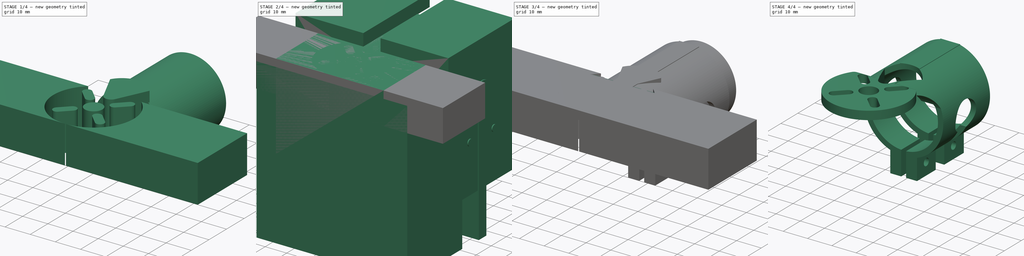
[diagram: build sequence overview — one tinted view per stage of 4, left to right]
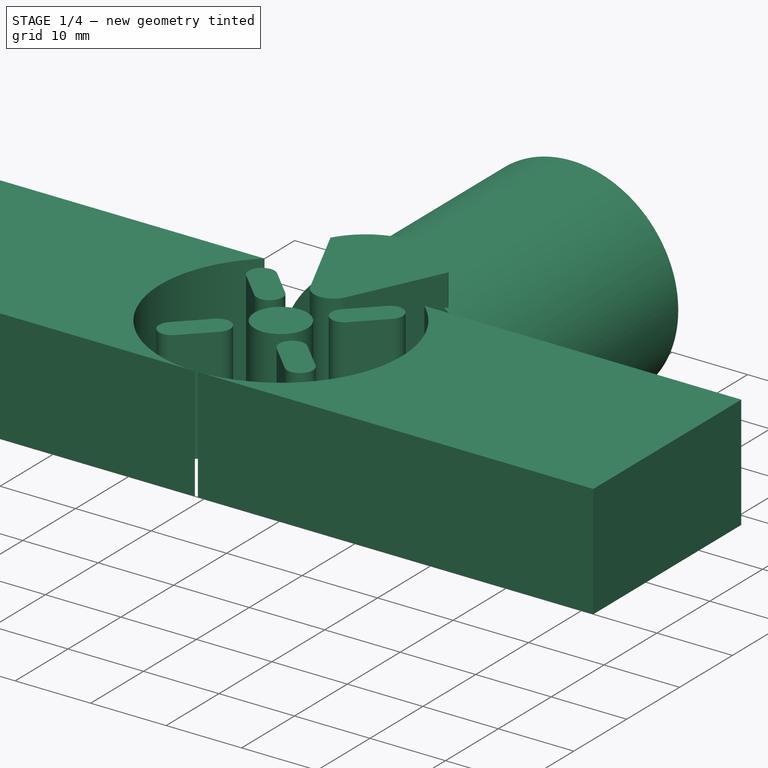
[diagram: stage 1 of 4 — iso view after this stage's code; geometry added in this stage tinted green]
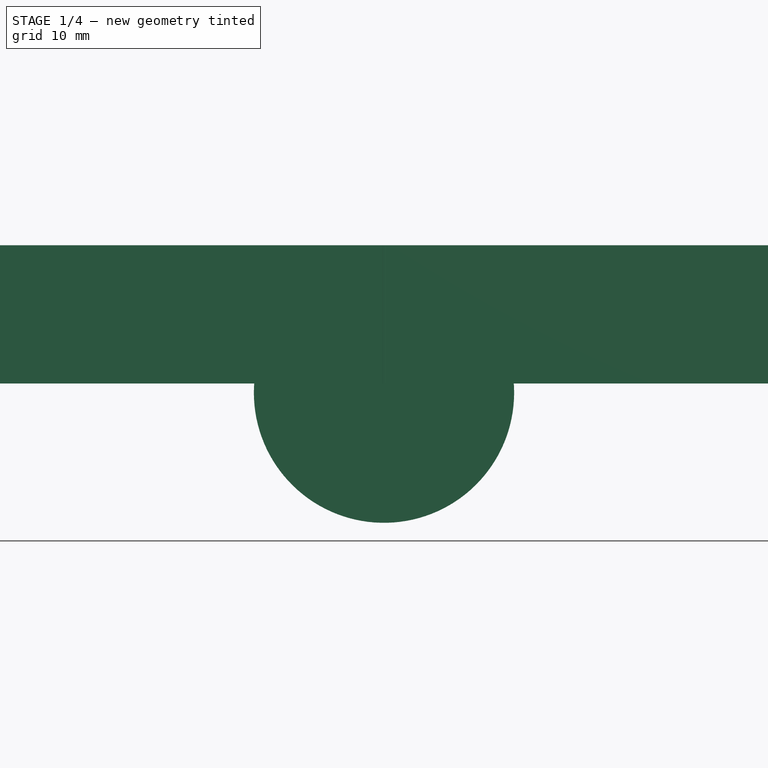
[diagram: stage 1 of 4 — front view after this stage's code; geometry added in this stage tinted green]
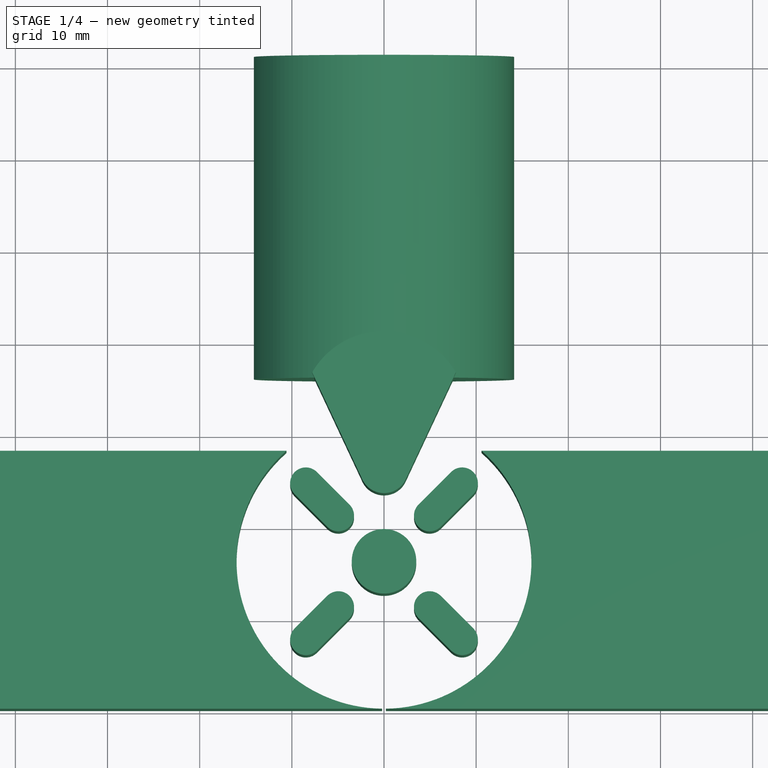
[diagram: stage 1 of 4 — top view after this stage's code; geometry added in this stage tinted green]
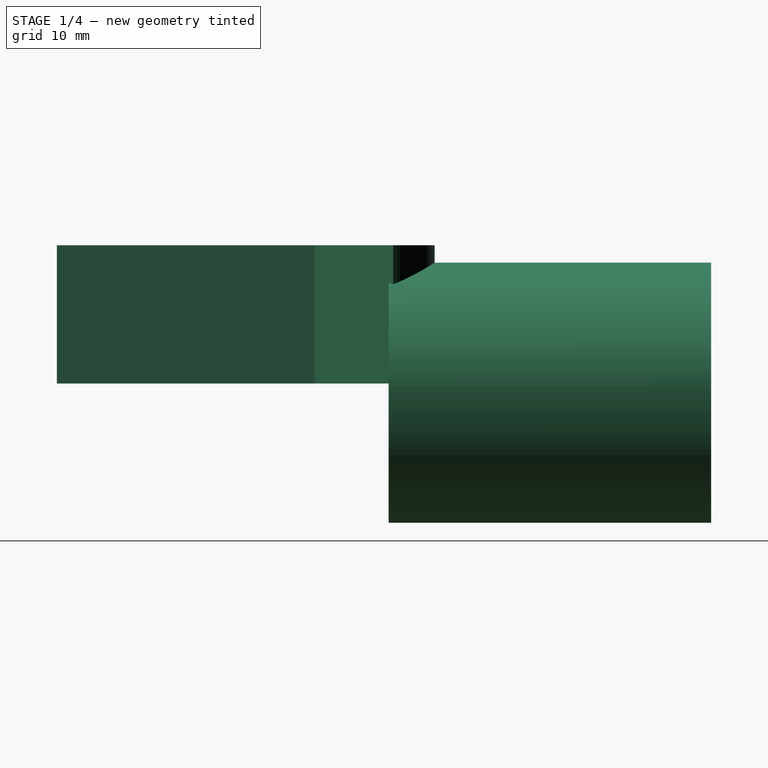
[diagram: stage 1 of 4 — right view after this stage's code; geometry added in this stage tinted green]
FCSTD DOCUMENT  (FreeCAD 0.16R6700 (Git))
Label: motor_mount_cut
License: All rights reserved
LicenseURL: http://en.wikipedia.org/wiki/All_rights_reserved
objects: Sketcher::SketchObject×4, Part::Cut×4, Part::Extrusion×3, Part::Box×1, Part::Fillet×1, Part::Cylinder×1
note: 14 computed .brp shape members not serialized (recipe doc carries the construction recipe); baked Part::Feature solids carry a one-line shape summary decoded from their .brp

FEATURE [Part::Extrusion] Extrude003  label="Motor_Mount_Extrude"
  Base = -> Sketch004
  Dir = (0,0,-15)
  Solid = true
FEATURE [Part::Cylinder] Cylinder
  Angle = 360
  Height = 35
  Placement = pos=(0,71,0) rot=(1,0,0;1.5708rad)
  Radius = 14.12
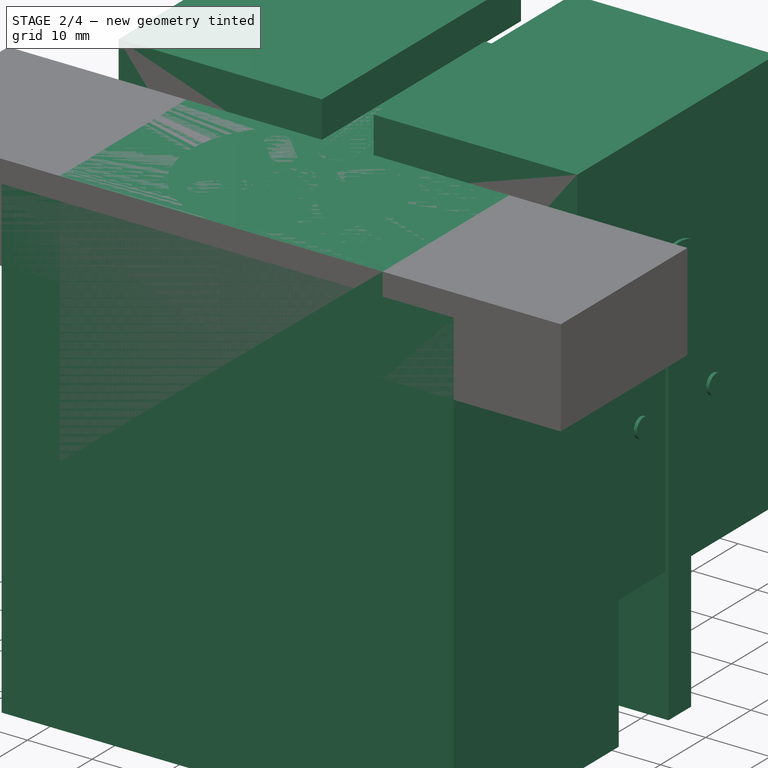
[diagram: stage 2 of 4 — iso view after this stage's code; geometry added in this stage tinted green]
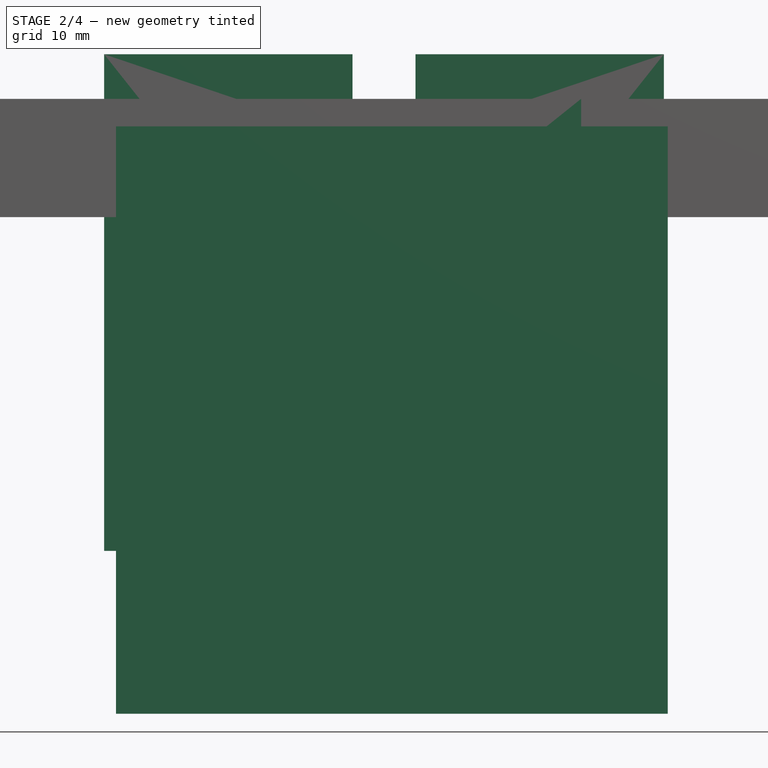
[diagram: stage 2 of 4 — front view after this stage's code; geometry added in this stage tinted green]
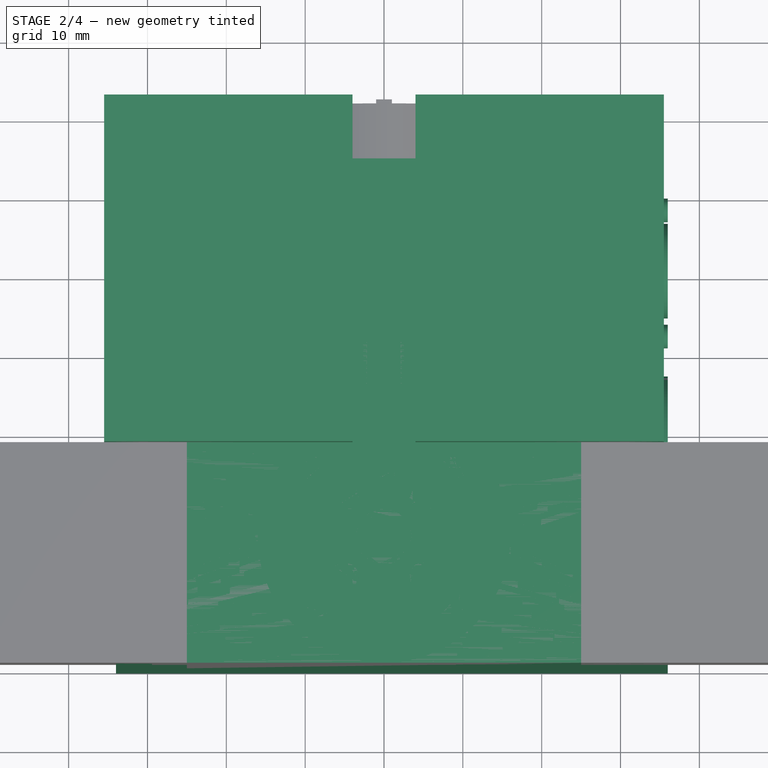
[diagram: stage 2 of 4 — top view after this stage's code; geometry added in this stage tinted green]
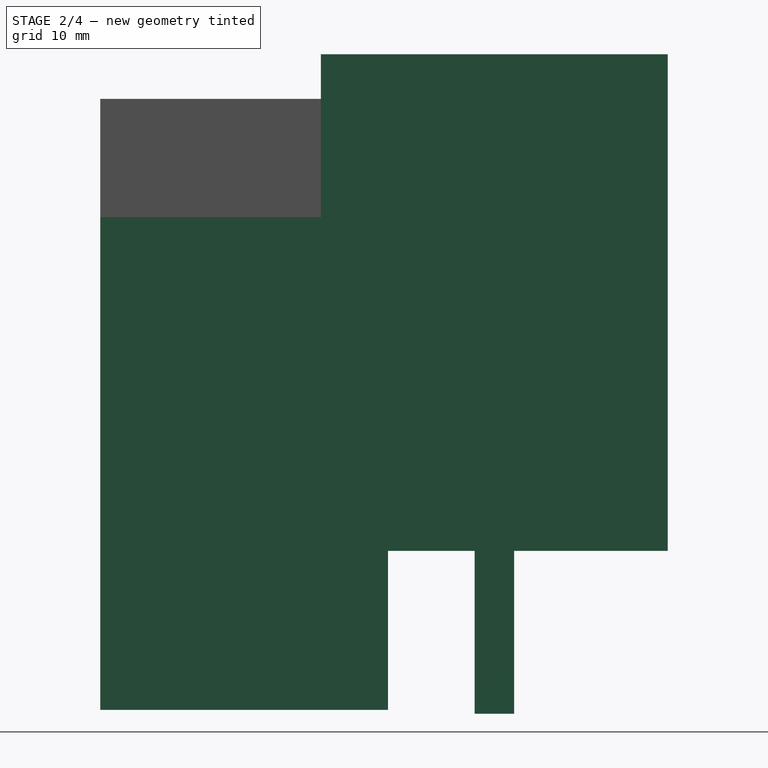
[diagram: stage 2 of 4 — right view after this stage's code; geometry added in this stage tinted green]
FEATURE [Part::Box] Box  label="Cube"
  Height = 40
  Length = 50
  Placement = pos=(-25,0,-24) rot=(0,0,1;0rad)
  Width = 64
FEATURE [Sketcher::SketchObject] Sketch002  label="Pipe_profile_sketch"
  Placement = pos=(0,72,0) rot=(1,0,0;1.5708rad)
  sketch-geometry (16):
    g0: LineSegment StartX=-35.5 StartY=21.6559 StartZ=0 EndX=-35.5 EndY=-41.3441 EndZ=0
    g1: LineSegment StartX=-5.5 StartY=-41.3441 StartZ=0 EndX=-5.5 EndY=-15.3441 EndZ=0
    g2: LineSegment StartX=35.5 StartY=21.6559 StartZ=0 EndX=35.5 EndY=-41.3441 EndZ=0
    g3: LineSegment StartX=35.5 StartY=-41.3441 StartZ=0 EndX=5.5 EndY=-41.3441 EndZ=0
    g4: LineSegment StartX=5.5 StartY=-41.3441 StartZ=0 EndX=5.5 EndY=-15.3441 EndZ=0
    g5: LineSegment StartX=-1 StartY=-40.9642 StartZ=0 EndX=1 EndY=-40.9642 EndZ=0
    g6: LineSegment StartX=1 StartY=-40.9642 StartZ=0 EndX=1 EndY=-13.9642 EndZ=0
    g7: LineSegment StartX=-1 StartY=-13.9642 StartZ=0 EndX=-1 EndY=-40.9642 EndZ=0
    g8: ArcOfCircle CenterX=0 CenterY=0 CenterZ=0 NormalX=0 NormalY=0 NormalZ=1 Radius=16.3 StartAngle=1.81873 EndAngle=4.36821
    g9: ArcOfCircle CenterX=0 CenterY=0 CenterZ=0 NormalX=0 NormalY=0 NormalZ=1 Radius=16.3 StartAngle=5.05657 EndAngle=7.60605
    g10: LineSegment StartX=-35.5 StartY=-41.3441 StartZ=0 EndX=-5.5 EndY=-41.3441 EndZ=0
    g11: LineSegment StartX=4 StartY=15.8016 StartZ=0 EndX=4 EndY=21.6559 EndZ=0
    g12: LineSegment StartX=4 StartY=21.6559 StartZ=0 EndX=35.5 EndY=21.6559 EndZ=0
    g13: LineSegment StartX=-4 StartY=15.8016 StartZ=0 EndX=-4 EndY=21.6559 EndZ=0
    g14: LineSegment StartX=-35.5 StartY=21.6559 StartZ=0 EndX=-4 EndY=21.6559 EndZ=0
    g15: LineSegment StartX=-1 StartY=-13.9642 StartZ=0 EndX=1 EndY=-13.9642 EndZ=0
  constraints (44):
    c: Vertical(g0)
    c: Vertical(g1)
    c: Symmetric(g4,g1,g-2)
    c: DistanceX(g-2,g4) = 5.5
    c: Vertical(g2)
    c: Coincident(g3,g2)
    c: Horizontal(g3)
    c: Coincident(g4,g3)
    c: Vertical(g4)
    c: Equal(g0,g2)
    c: Horizontal(g5)
    c: Coincident(g6,g5)
    c: Vertical(g6)
    c: Vertical(g7)
    c: Equal(g6,g7)
    c: DistanceX(g5,g5) = 2
    c: Symmetric(g6,g7,g-2)
    c: Coincident(g8,g-1)
    c: Coincident(g8,g1)
    c: Coincident(g9,g-1)
    c: Coincident(g9,g4)
    c: Radius(g8) = 16.3
    c: Symmetric(g8,g9,g-2)
    c: DistanceX(g8,g-1) = 4
    c: Coincident(g10,g1)
    c: Horizontal(g10)
    c: Distance(g10) = 30
    c: Distance(g6) = 27
    c: Coincident(g10,g0)
    c: Symmetric(g0,g2,g-2)
    c: Distance(g4) = 26
    c: Coincident(g11,g9)
    c: Vertical(g11)
    c: Coincident(g12,g11)
    c: Coincident(g12,g2)
    c: Horizontal(g12)
    c: Coincident(g13,g8)
    c: Vertical(g13)
    c: Coincident(g14,g0)
    c: Coincident(g14,g13)
    c: Horizontal(g14)
    c: Distance(g0) = 63
    c: Coincident(g15,g7)
    c: Coincident(g15,g6)
FEATURE [Sketcher::SketchObject] Sketch003  label="Side-cut-sketch"
  Placement = pos=(36,0,-2) rot=(0.57735,0.57735,0.57735;2.0944rad)
  sketch-geometry (13):
    g0: LineSegment StartX=26 StartY=14.5 StartZ=0 EndX=0 EndY=14.5 EndZ=0
    g1: LineSegment StartX=0 StartY=-59.5 StartZ=0 EndX=0 EndY=14.5 EndZ=0
    g2: LineSegment [constr] StartX=42 StartY=-17 StartZ=0 EndX=58 EndY=-17 EndZ=0
    g3: Circle CenterX=42 CenterY=-17 CenterZ=0 NormalX=0 NormalY=0 NormalZ=1 Radius=1.5
    g4: Circle CenterX=58 CenterY=-17 CenterZ=0 NormalX=0 NormalY=0 NormalZ=1 Radius=1.5
    g5: LineSegment StartX=47.5 StartY=-60 StartZ=0 EndX=52.5 EndY=-60 EndZ=0
    g6: LineSegment StartX=47.5 StartY=-60 StartZ=0 EndX=47.5 EndY=-5.45436 EndZ=0
    g7: LineSegment StartX=52.5 StartY=-60 StartZ=0 EndX=52.5 EndY=-5.45436 EndZ=0
    g8: LineSegment [constr] StartX=50 StartY=0 StartZ=0 EndX=50 EndY=-60 EndZ=0
    g9: ArcOfCircle CenterX=50 CenterY=0 CenterZ=0 NormalX=0 NormalY=0 NormalZ=1 Radius=6 StartAngle=5.14216 EndAngle=10.5658
    g10: LineSegment StartX=36.5 StartY=7.50135 StartZ=0 EndX=36.5 EndY=-59.5 EndZ=0
    g11: LineSegment StartX=0 StartY=-59.5 StartZ=0 EndX=36.5 EndY=-59.5 EndZ=0
    g12: ArcOfCircle CenterX=26.2524 CenterY=3.5029 CenterZ=0 NormalX=0 NormalY=0 NormalZ=1 Radius=11 StartAngle=0.372017 EndAngle=1.59375
  constraints (40):
    c: Horizontal(g0)
    c: PointOnObject(g1,g-2)
    c: Coincident(g1,g0)
    c: DistanceY(g-1,g0) = 14.5
    c: Horizontal(g2)
    c: Coincident(g3,g2)
    c: Coincident(g4,g2)
    c: DistanceY(g-1,g2) = -17
    c: Radius(g3) = 1.5
    c: Equal(g3,g4)
    c: Horizontal(g5)
    c: Coincident(g6,g5)
    c: Vertical(g6)
    c: Coincident(g7,g5)
    c: Vertical(g7)
    c: Distance(g5) = 5
    c: PointOnObject(g8,g-1)
    c: Vertical(g8)
    c: Distance(g2,g8) = 8
    c: Symmetric(g7,g6,g8)
    c: PointOnObject(g8,g5)
    c: Distance(g8) = 60
    c: Coincident(g9,g6)
    c: Coincident(g9,g7)
    c: Radius(g9) = 6
    c: Vertical(g10)
    c: Coincident(g11,g1)
    c: Coincident(g11,g10)
    c: Horizontal(g11)
    c: PointOnObject(g0,g-2)
    c: Distance(g1) = 74
    c: Coincident(g12,g0)
    c: Coincident(g12,g10)
    c: Radius(g12) = 11
    c: Angle(g12) = 1.22173
    c: Distance(g0) = 26
    c: Symmetric(g2,g2,g8)
    c: PointOnObject(g9,g-1)
    c: DistanceX(g-2,g8) = 50
    c: Distance(g11) = 36.5
FEATURE [Sketcher::SketchObject] Sketch004  label="motor_mount_sketch"
  Placement = pos=(0,0,16) rot=(0,0,1;0rad)
  sketch-geometry (45):
    g0: LineSegment StartX=-52.5816 StartY=28 StartZ=0 EndX=-52.5816 EndY=0 EndZ=0
    g1: LineSegment StartX=-52.5816 StartY=0 StartZ=0 EndX=-0.2 EndY=0 EndZ=0
    g2: LineSegment StartX=0.2 StartY=0 StartZ=0 EndX=52.5816 EndY=0 EndZ=0
    g3: LineSegment StartX=52.5816 StartY=0 StartZ=0 EndX=52.5816 EndY=28 EndZ=0
    g4: LineSegment StartX=-52.5816 StartY=28 StartZ=0 EndX=-10.5816 EndY=28 EndZ=0
    g5: LineSegment StartX=10.5816 StartY=28 StartZ=0 EndX=52.5816 EndY=28 EndZ=0
    g6: ArcOfCircle CenterX=-3e-12 CenterY=15.9987 CenterZ=0 NormalX=0 NormalY=0 NormalZ=1 Radius=16 StartAngle=2.29341 EndAngle=4.69989
    g7: ArcOfCircle CenterX=-3e-12 CenterY=15.9987 CenterZ=0 NormalX=0 NormalY=0 NormalZ=1 Radius=16 StartAngle=4.72489 EndAngle=7.13137
    g8: Circle CenterX=-3e-12 CenterY=15.9987 CenterZ=0 NormalX=0 NormalY=0 NormalZ=1 Radius=3.5
    g9: LineSegment [constr] StartX=-15.9987 StartY=0 StartZ=0 EndX=12.0013 EndY=28 EndZ=0
    g10: LineSegment [constr] StartX=-12.0013 StartY=28 StartZ=0 EndX=15.9987 EndY=0 EndZ=0
    g11: ArcOfCircle CenterX=-4.94975 CenterY=20.9485 CenterZ=0 NormalX=0 NormalY=0 NormalZ=1 Radius=1.7 StartAngle=3.92699 EndAngle=7.06858
    g12: ArcOfCircle CenterX=-8.48528 CenterY=24.484 CenterZ=0 NormalX=0 NormalY=0 NormalZ=1 Radius=1.7 StartAngle=0.785398 EndAngle=3.92699
    g13: LineSegment StartX=-3.74767 StartY=22.1506 StartZ=0 EndX=-7.2832 EndY=25.6861 EndZ=0
    g14: LineSegment StartX=-6.15183 StartY=19.7464 StartZ=0 EndX=-9.68736 EndY=23.2819 EndZ=0
    g15: ArcOfCircle CenterX=-4.94975 CenterY=11.049 CenterZ=0 NormalX=0 NormalY=0 NormalZ=1 Radius=1.7 StartAngle=5.49779 EndAngle=8.63938
    g16: ArcOfCircle CenterX=-8.48528 CenterY=7.51347 CenterZ=0 NormalX=0 NormalY=0 NormalZ=1 Radius=1.7 StartAngle=2.35619 EndAngle=5.49779
    g17: LineSegment StartX=-6.15183 StartY=12.2511 StartZ=0 EndX=-9.68736 EndY=8.71555 EndZ=0
    g18: LineSegment StartX=-3.74767 StartY=9.84692 StartZ=0 EndX=-7.2832 EndY=6.31139 EndZ=0
    g19: ArcOfCircle CenterX=4.94975 CenterY=11.049 CenterZ=0 NormalX=0 NormalY=0 NormalZ=1 Radius=1.7 StartAngle=0.785398 EndAngle=3.92699
    g20: ArcOfCircle CenterX=8.48528 CenterY=7.51347 CenterZ=0 NormalX=0 NormalY=0 NormalZ=1 Radius=1.7 StartAngle=3.92699 EndAngle=7.06858
    g21: LineSegment StartX=3.74767 StartY=9.84692 StartZ=0 EndX=7.2832 EndY=6.31139 EndZ=0
    g22: LineSegment StartX=6.15183 StartY=12.2511 StartZ=0 EndX=9.68736 EndY=8.71555 EndZ=0
    g23: ArcOfCircle CenterX=4.94975 CenterY=20.9485 CenterZ=0 NormalX=0 NormalY=0 NormalZ=1 Radius=1.7 StartAngle=2.35619 EndAngle=5.49779
    g24: ArcOfCircle CenterX=8.48528 CenterY=24.484 CenterZ=0 NormalX=0 NormalY=0 NormalZ=1 Radius=1.7 StartAngle=5.49779 EndAngle=8.63938
    g25: LineSegment StartX=6.15183 StartY=19.7464 StartZ=0 EndX=9.68736 EndY=23.2819 EndZ=0
    g26: LineSegment StartX=3.74767 StartY=22.1506 StartZ=0 EndX=7.2832 EndY=25.6861 EndZ=0
    g27: Circle [constr] CenterX=-3e-12 CenterY=15.9987 CenterZ=0 NormalX=0 NormalY=0 NormalZ=1 Radius=7
    g28: LineSegment StartX=-2.35412 StartY=24.8951 StartZ=0 EndX=-7.79423 EndY=36.4987 EndZ=0
    g29: LineSegment StartX=2.35412 StartY=24.8951 StartZ=0 EndX=7.79423 EndY=36.4987 EndZ=0
    g30: ArcOfCircle CenterX=0 CenterY=31.9987 CenterZ=0 NormalX=0 NormalY=0 NormalZ=1 Radius=9 StartAngle=0.523599 EndAngle=2.61799
    g31: ArcOfCircle CenterX=0 CenterY=25.9987 CenterZ=0 NormalX=0 NormalY=0 NormalZ=1 Radius=2.6 StartAngle=3.57999 EndAngle=5.84479
    g32: LineSegment [constr] StartX=-16 StartY=15.9987 StartZ=0 EndX=16 EndY=15.9987 EndZ=0
    g33: ArcOfCircle [constr] CenterX=-7 CenterY=15.9987 CenterZ=0 NormalX=0 NormalY=0 NormalZ=1 Radius=1.7 StartAngle=4.71239 EndAngle=7.85398
    g34: ArcOfCircle [constr] CenterX=-12 CenterY=15.9987 CenterZ=0 NormalX=0 NormalY=0 NormalZ=1 Radius=1.7 StartAngle=1.5708 EndAngle=4.71239
    g35: LineSegment [constr] StartX=-7 StartY=17.6987 StartZ=0 EndX=-12 EndY=17.6987 EndZ=0
    g36: LineSegment [constr] StartX=-7 StartY=14.2987 StartZ=0 EndX=-12 EndY=14.2987 EndZ=0
    g37: ArcOfCircle [constr] CenterX=0 CenterY=8.99875 CenterZ=0 NormalX=0 NormalY=0 NormalZ=1 Radius=1.7 StartAngle=0 EndAngle=3.14159
    g38: ArcOfCircle [constr] CenterX=0 CenterY=3.99875 CenterZ=0 NormalX=0 NormalY=0 NormalZ=1 Radius=1.7 StartAngle=3.14159 EndAngle=6.28319
    g39: LineSegment [constr] StartX=-1.7 StartY=8.99875 StartZ=0 EndX=-1.7 EndY=3.99875 EndZ=0
    g40: LineSegment [constr] StartX=1.7 StartY=8.99875 StartZ=0 EndX=1.7 EndY=3.99875 EndZ=0
    g41: ArcOfCircle [constr] CenterX=7 CenterY=15.9987 CenterZ=0 NormalX=0 NormalY=0 NormalZ=1 Radius=1.7 StartAngle=1.5708 EndAngle=4.71239
    g42: ArcOfCircle [constr] CenterX=12 CenterY=15.9987 CenterZ=0 NormalX=0 NormalY=0 NormalZ=1 Radius=1.7 StartAngle=4.71239 EndAngle=7.85398
    g43: LineSegment [constr] StartX=7 StartY=14.2987 StartZ=0 EndX=12 EndY=14.2987 EndZ=0
    g44: LineSegment [constr] StartX=7 StartY=17.6987 StartZ=0 EndX=12 EndY=17.6987 EndZ=0
  constraints (121):
    c: PointOnObject(g0,g-1)
    c: Vertical(g0)
    c: Coincident(g1,g0)
    c: PointOnObject(g1,g-1)
    c: Horizontal(g2)
    c: Coincident(g3,g2)
    c: Vertical(g3)
    c: Symmetric(g2,g1,g-2)
    c: Symmetric(g0,g2,g-2)
    c: DistanceX(g-2,g1) = -0.2
    c: Equal(g0,g3)
    c: Coincident(g4,g0)
    c: Horizontal(g4)
    c: Coincident(g5,g3)
    c: Horizontal(g5)
    c: Symmetric(g5,g4,g-2)
    c: Coincident(g6,g4)
    c: Coincident(g6,g1)
    c: Coincident(g7,g6)
    c: Coincident(g7,g5)
    c: Coincident(g7,g2)
    c: Distance(g4) = 42
    c: Radius(g6) = 16
    c: Distance(g0) = 28
    c: Radius(g8) = 3.5
    c: Coincident(g8,g6)
    c: PointOnObject(g9,g5)
    c: PointOnObject(g10,g4)
    c: PointOnObject(g10,g2)
    c: PointOnObject(g6,g9)
    c: PointOnObject(g6,g10)
    c: Angle(g9,g10) = 1.5708
    c: Equal(g10,g9)
    c: PointOnObject(g9,g1)
    c: Tangent(g11,g14) = 1.5708
    c: Tangent(g11,g13) = -1.5708
    c: Tangent(g13,g12) = -1.5708
    c: Tangent(g14,g12) = 1.5708
    c: Equal(g11,g12)
    c: PointOnObject(g11,g10)
    c: PointOnObject(g12,g10)
    c: Distance(g11,g6) = 7
    c: Radius(g12) = 1.7
    c: Distance(g13) = 5
    c: Tangent(g15,g18) = 1.5708
    c: Tangent(g15,g17) = -1.5708
    c: Tangent(g17,g16) = -1.5708
    c: Tangent(g18,g16) = 1.5708
    c: Equal(g15,g16)
    c: PointOnObject(g15,g9)
    c: PointOnObject(g16,g9)
    c: PointOnObject(g19,g10)
    c: PointOnObject(g23,g9)
    c: Equal(g15,g11)
    c: Equal(g14,g17)
    c: Tangent(g19,g22) = 1.5708
    c: Tangent(g19,g21) = -1.5708
    c: Tangent(g21,g20) = -1.5708
    c: Tangent(g22,g20) = 1.5708
    c: Equal(g19,g20)
    c: PointOnObject(g20,g10)
    c: Equal(g19,g11)
    c: Equal(g21,g14)
    c: Tangent(g23,g26) = 1.5708
    c: Tangent(g23,g25) = -1.5708
    c: Tangent(g25,g24) = -1.5708
    c: Tangent(g26,g24) = 1.5708
    c: Equal(g23,g24)
    c: PointOnObject(g24,g9)
    c: Equal(g23,g11)
    c: Equal(g26,g13)
    c: Coincident(g27,g6)
    c: PointOnObject(g11,g27)
    c: PointOnObject(g15,g27)
    c: PointOnObject(g19,g27)
    c: PointOnObject(g23,g27)
    c: Symmetric(g29,g28,g-2)
    c: Coincident(g30,g28)
    c: Coincident(g30,g29)
    c: Radius(g30) = 9
    c: Angle(g30) = 2.0944
    c: Tangent(g28,g31) = 1.5708
    c: Tangent(g29,g31) = -1.5708
    c: Symmetric(g29,g28,g-2)
    c: Radius(g31) = 2.6
    c: Distance(g30,g6) = 16
    c: Distance(g31,g30) = 6
    c: PointOnObject(g32,g6)
    c: PointOnObject(g32,g7)
    c: Horizontal(g32)
    c: PointOnObject(g6,g32)
    c: Tangent(g33,g36) = 1.5708
    c: Tangent(g33,g35) = -1.5708
    c: Tangent(g35,g34) = -1.5708
    c: Tangent(g36,g34) = 1.5708
    c: Horizontal(g35)
    c: Equal(g33,g34)
    c: PointOnObject(g33,g32)
    c: PointOnObject(g33,g27)
    c: Equal(g33,g11)
    c: Equal(g35,g14)
    c: Tangent(g37,g40) = 1.5708
    c: Tangent(g37,g39) = -1.5708
    c: Tangent(g39,g38) = -1.5708
    c: Tangent(g40,g38) = 1.5708
    c: Vertical(g39)
    c: Equal(g37,g38)
    c: PointOnObject(g37,g-2)
    c: Tangent(g41,g44) = 1.5708
    c: Tangent(g41,g43) = -1.5708
    c: Tangent(g43,g42) = -1.5708
    c: Tangent(g44,g42) = 1.5708
    c: Horizontal(g43)
    c: Equal(g41,g42)
    c: PointOnObject(g41,g32)
    c: PointOnObject(g41,g27)
    c: Equal(g41,g11)
    c: Equal(g44,g14)
    c: PointOnObject(g37,g27)
    c: Equal(g37,g11)
    c: Equal(g39,g14)
FEATURE [Sketcher::SketchObject] Sketch005  label="Pipe_profile_sketch_copy"
  Placement = pos=(0,72,0) rot=(1,0,0;1.5708rad)
  sketch-geometry (16):
    g0: LineSegment StartX=-35.5 StartY=21.975 StartZ=0 EndX=-35.5 EndY=-41.025 EndZ=0
    g1: LineSegment StartX=-5.5 StartY=-41.025 StartZ=0 EndX=-5.5 EndY=-15.025 EndZ=0
    g2: LineSegment StartX=35.5 StartY=21.975 StartZ=0 EndX=35.5 EndY=-41.025 EndZ=0
    g3: LineSegment StartX=35.5 StartY=-41.025 StartZ=0 EndX=5.5 EndY=-41.025 EndZ=0
    g4: LineSegment StartX=5.5 StartY=-41.025 StartZ=0 EndX=5.5 EndY=-15.025 EndZ=0
    g5: LineSegment StartX=-1 StartY=-40.9642 StartZ=0 EndX=1 EndY=-40.9642 EndZ=0
    g6: LineSegment StartX=1 StartY=-40.9642 StartZ=0 EndX=1 EndY=-13.9642 EndZ=0
    g7: LineSegment StartX=-1 StartY=-13.9642 StartZ=0 EndX=-1 EndY=-40.9642 EndZ=0
    g8: ArcOfCircle CenterX=0 CenterY=0 CenterZ=0 NormalX=0 NormalY=0 NormalZ=1 Radius=14 StartAngle=4.78388 EndAngle=10.9241
    g9: ArcOfCircle CenterX=0 CenterY=0 CenterZ=0 NormalX=0 NormalY=0 NormalZ=1 Radius=16 StartAngle=1.57705 EndAngle=4.36148
    g10: ArcOfCircle CenterX=0 CenterY=0 CenterZ=0 NormalX=0 NormalY=0 NormalZ=1 Radius=16 StartAngle=5.0633 EndAngle=7.84773
    g11: LineSegment StartX=-35.5 StartY=-41.025 StartZ=0 EndX=-5.5 EndY=-41.025 EndZ=0
    g12: LineSegment StartX=0.1 StartY=15.9997 StartZ=0 EndX=0.1 EndY=21.975 EndZ=0
    g13: LineSegment StartX=0.1 StartY=21.975 StartZ=0 EndX=35.5 EndY=21.975 EndZ=0
    g14: LineSegment StartX=-0.1 StartY=15.9997 StartZ=0 EndX=-0.1 EndY=21.975 EndZ=0
    g15: LineSegment StartX=-35.5 StartY=21.975 StartZ=0 EndX=-0.1 EndY=21.975 EndZ=0
  constraints (46):
    c: Vertical(g0)
    c: Vertical(g1)
    c: Symmetric(g4,g1,g-2)
    c: DistanceX(g-2,g4) = 5.5
    c: Vertical(g2)
    c: Coincident(g3,g2)
    c: Horizontal(g3)
    c: Coincident(g4,g3)
    c: Vertical(g4)
    c: Equal(g0,g2)
    c: Horizontal(g5)
    c: Coincident(g6,g5)
    c: Vertical(g6)
    c: Vertical(g7)
    c: Equal(g6,g7)
    c: DistanceX(g5,g5) = 2
    c: Symmetric(g6,g7,g-2)
    c: Coincident(g8,g-1)
    c: Coincident(g8,g6)
    c: Radius(g8) = 14
    c: Coincident(g9,g-1)
    c: Coincident(g9,g1)
    c: Coincident(g10,g-1)
    c: Coincident(g10,g4)
    c: Radius(g9) = 16
    c: Symmetric(g9,g10,g-2)
    c: DistanceX(g9,g-1) = 0.1
    c: Coincident(g11,g1)
    c: Horizontal(g11)
    c: Distance(g11) = 30
    c: Distance(g6) = 27
    c: Coincident(g11,g0)
    c: Symmetric(g0,g2,g-2)
    c: Coincident(g7,g8)
    c: Distance(g4) = 26
    c: Coincident(g12,g10)
    c: Vertical(g12)
    c: Coincident(g13,g12)
    c: Coincident(g13,g2)
    c: Horizontal(g13)
    c: Coincident(g14,g9)
    c: Vertical(g14)
    c: Coincident(g15,g0)
    c: Coincident(g15,g14)
    c: Horizontal(g15)
    c: Distance(g0) = 63
FEATURE [Part::Extrusion] Extrude  label="Side_Cut_Extrude"
  Base = -> Sketch003
  Dir = (-70,0,0)
  Solid = true
FEATURE [Part::Extrusion] Extrude001  label="Pipe_profile_extride"
  Base = -> Sketch002
  Dir = (0,-44,0)
  Solid = true
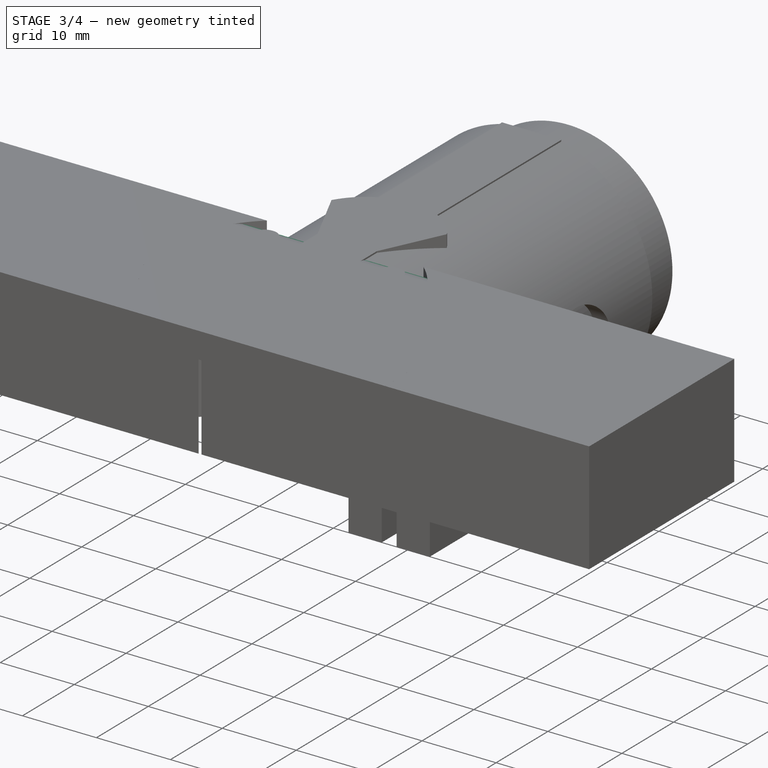
[diagram: stage 3 of 4 — iso view after this stage's code; geometry added in this stage tinted green]
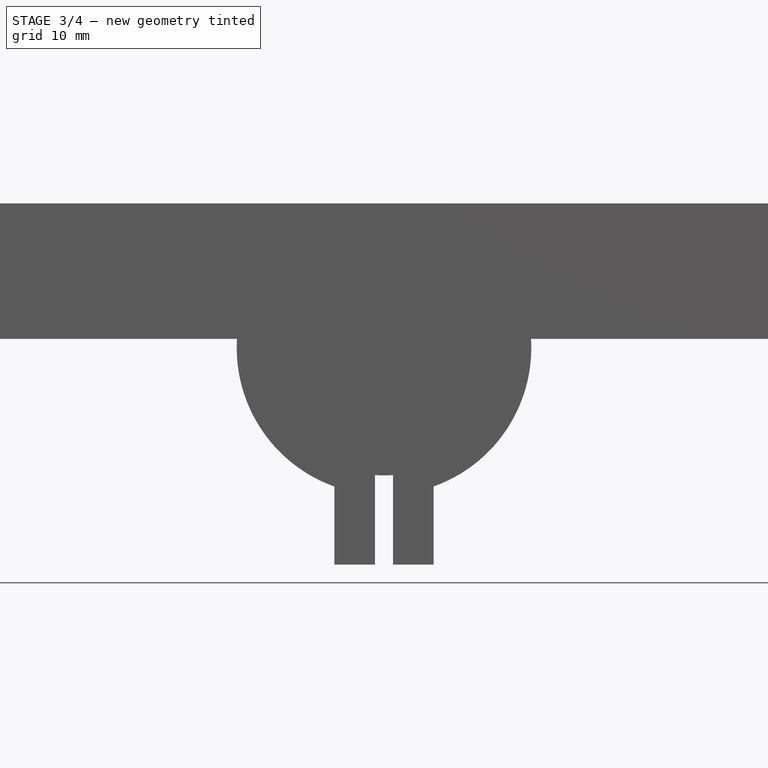
[diagram: stage 3 of 4 — front view after this stage's code; geometry added in this stage tinted green]
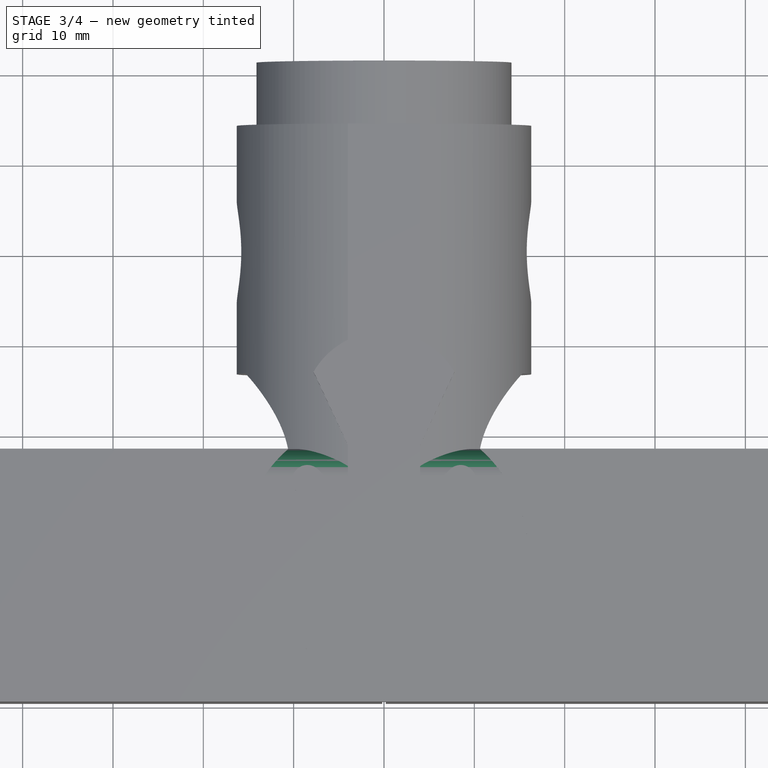
[diagram: stage 3 of 4 — top view after this stage's code; geometry added in this stage tinted green]
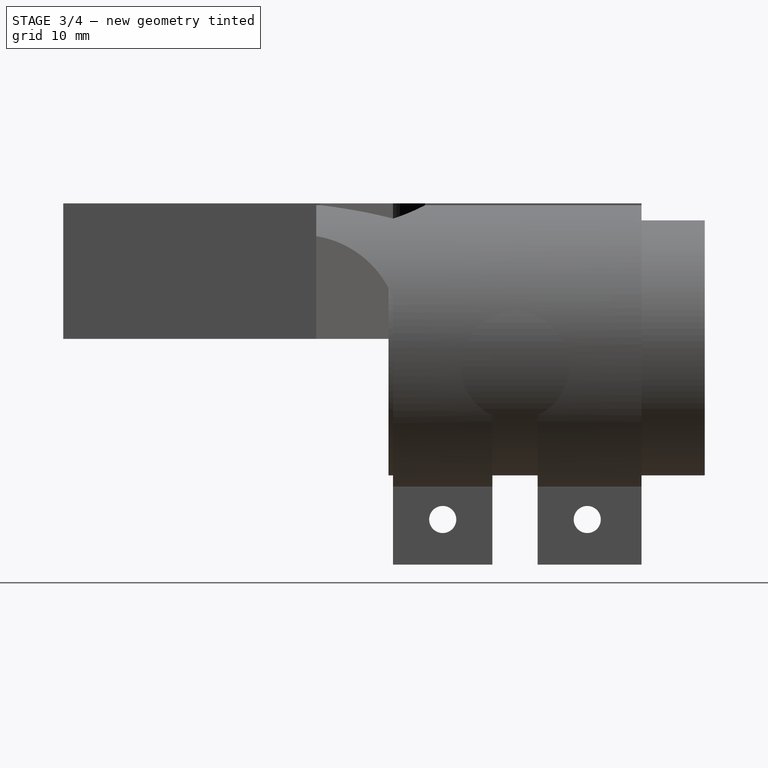
[diagram: stage 3 of 4 — right view after this stage's code; geometry added in this stage tinted green]
FEATURE [Part::Cut] Cut
  Base = -> Box
  Tool = -> Extrude
FEATURE [Part::Cut] Cut001
  Base = -> Cut
  Tool = -> Extrude001
FEATURE [Part::Fillet] Fillet
  Base = -> Cut001
  Edges = 2 edges r=3: [Edge9,Edge13]
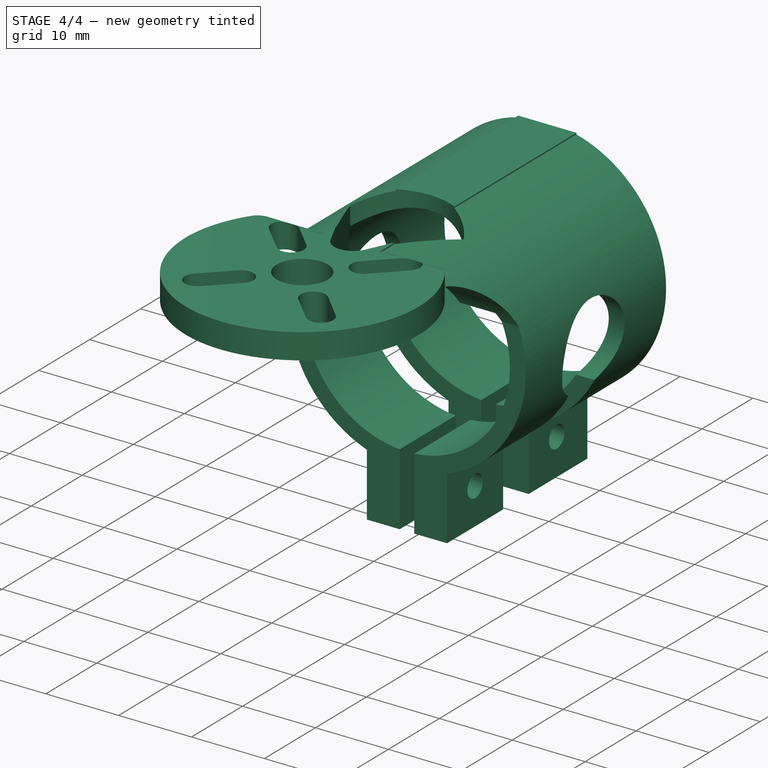
[diagram: stage 4 of 4 — iso view after this stage's code; geometry added in this stage tinted green]
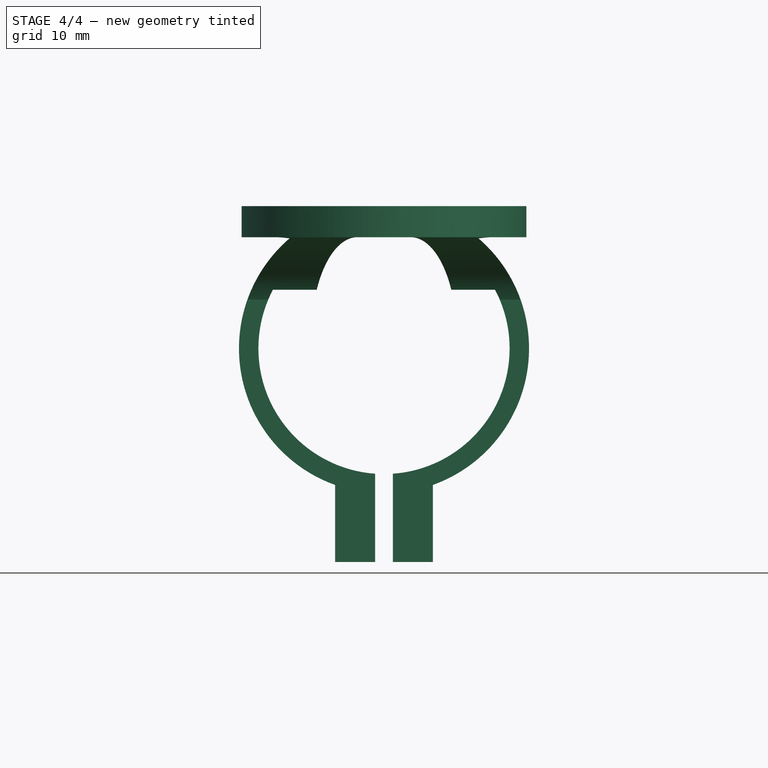
[diagram: stage 4 of 4 — front view after this stage's code; geometry added in this stage tinted green]
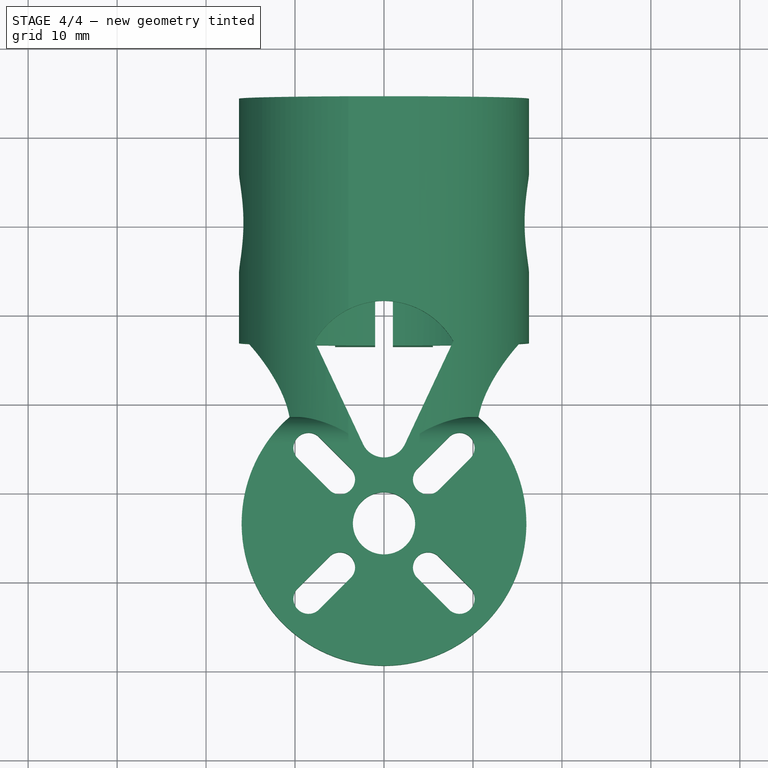
[diagram: stage 4 of 4 — top view after this stage's code; geometry added in this stage tinted green]
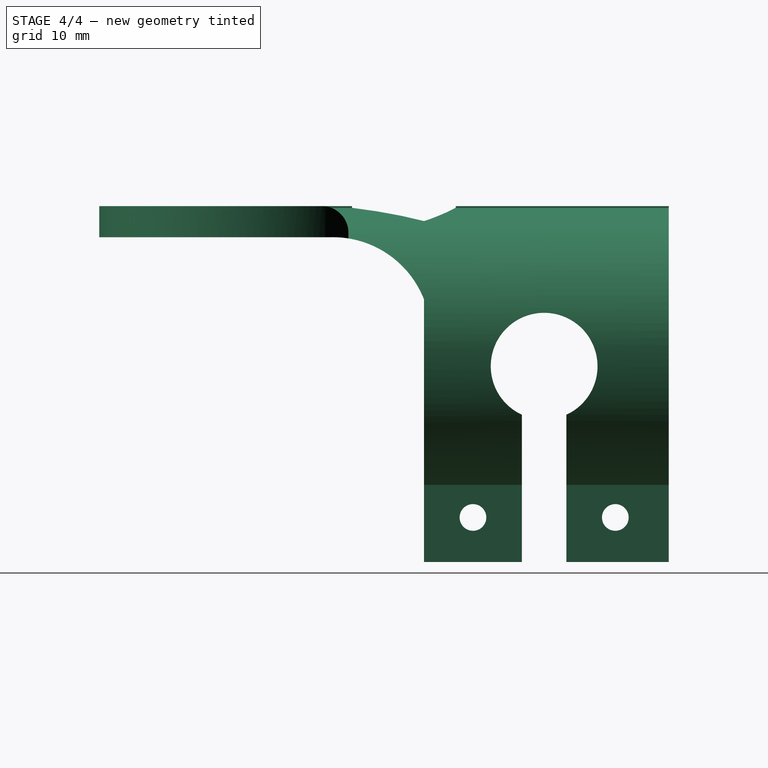
[diagram: stage 4 of 4 — right view after this stage's code; geometry added in this stage tinted green]
FEATURE [Part::Cut] Cut002
  Base = -> Fillet
  Tool = -> Extrude003
FEATURE [Part::Cut] Cut003
  Base = -> Cut002
  Tool = -> Cylinder
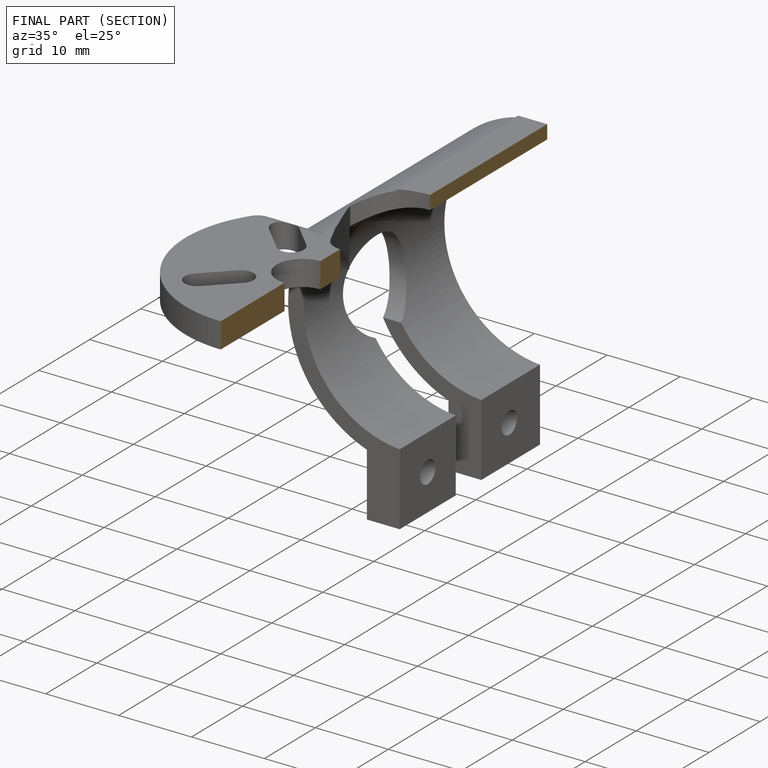
[diagram: finished part — half-section view (interior)]
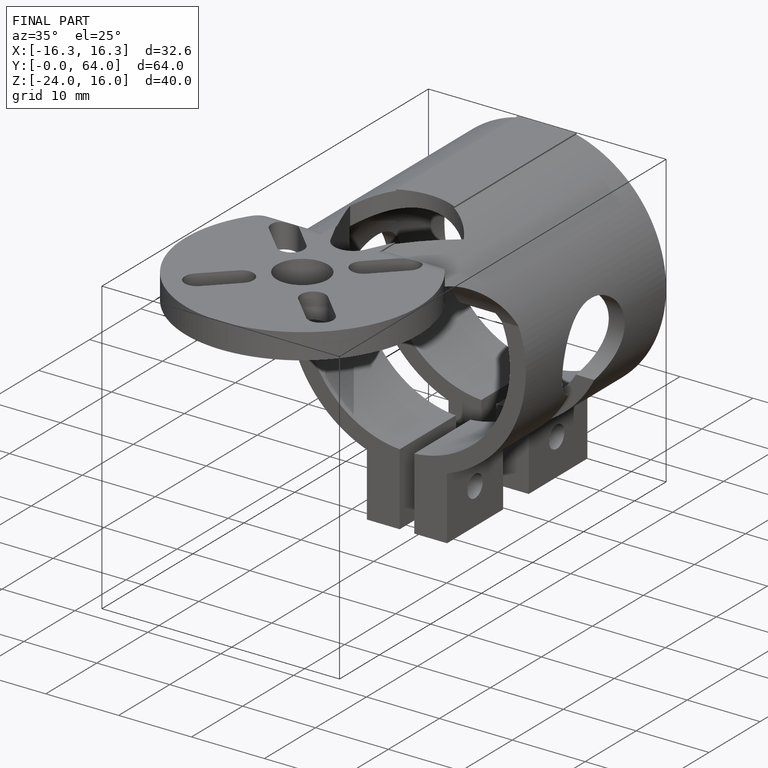
[diagram: finished part — iso view with bounding-box wireframe]
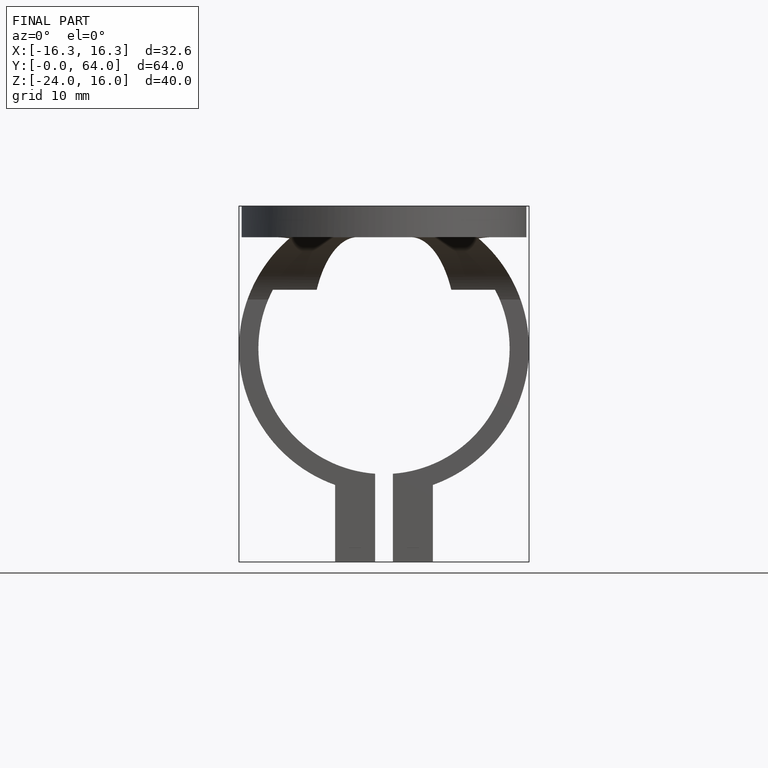
[diagram: finished part — front view with bounding-box wireframe]
